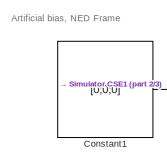
[diagram: root canvas - part 1/3, top left region]
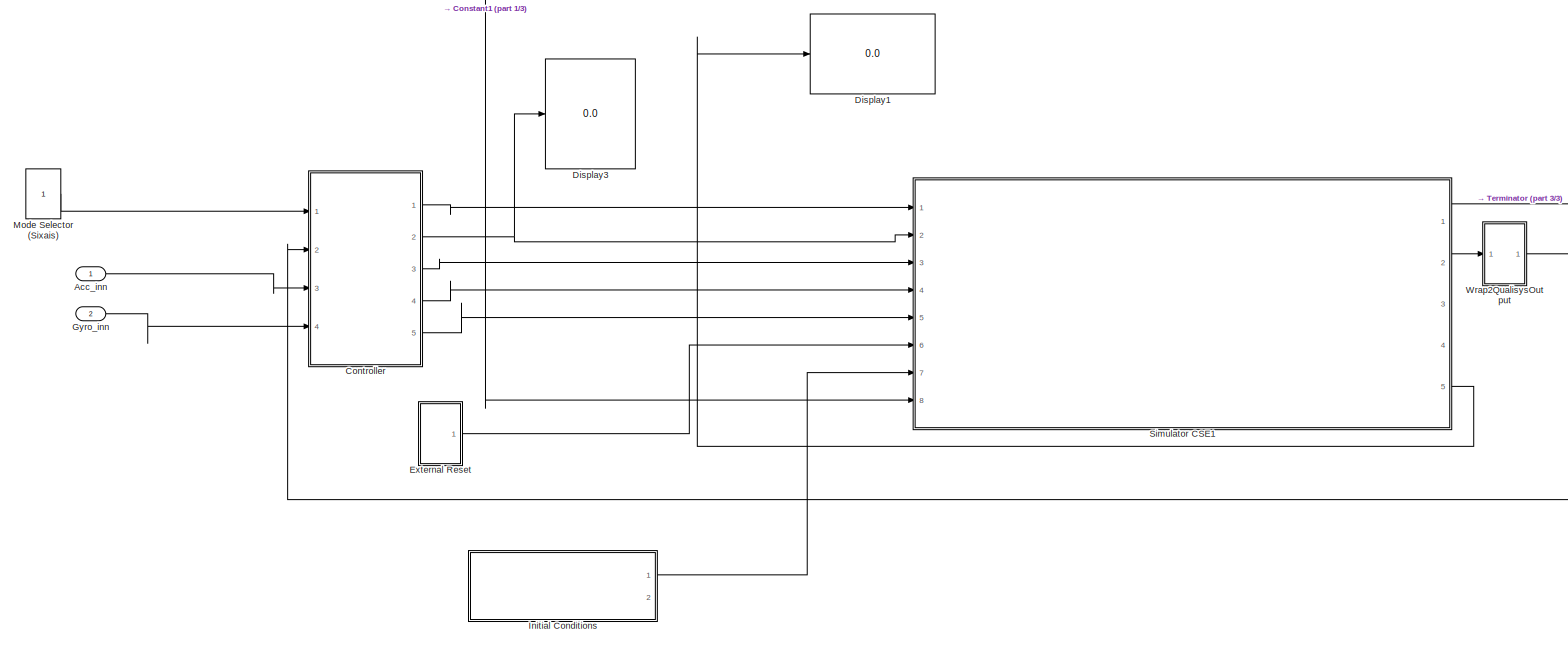
[diagram: root canvas - part 2/3, full width, bottom band]
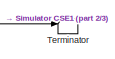
[diagram: root canvas - part 3/3, middle right region]
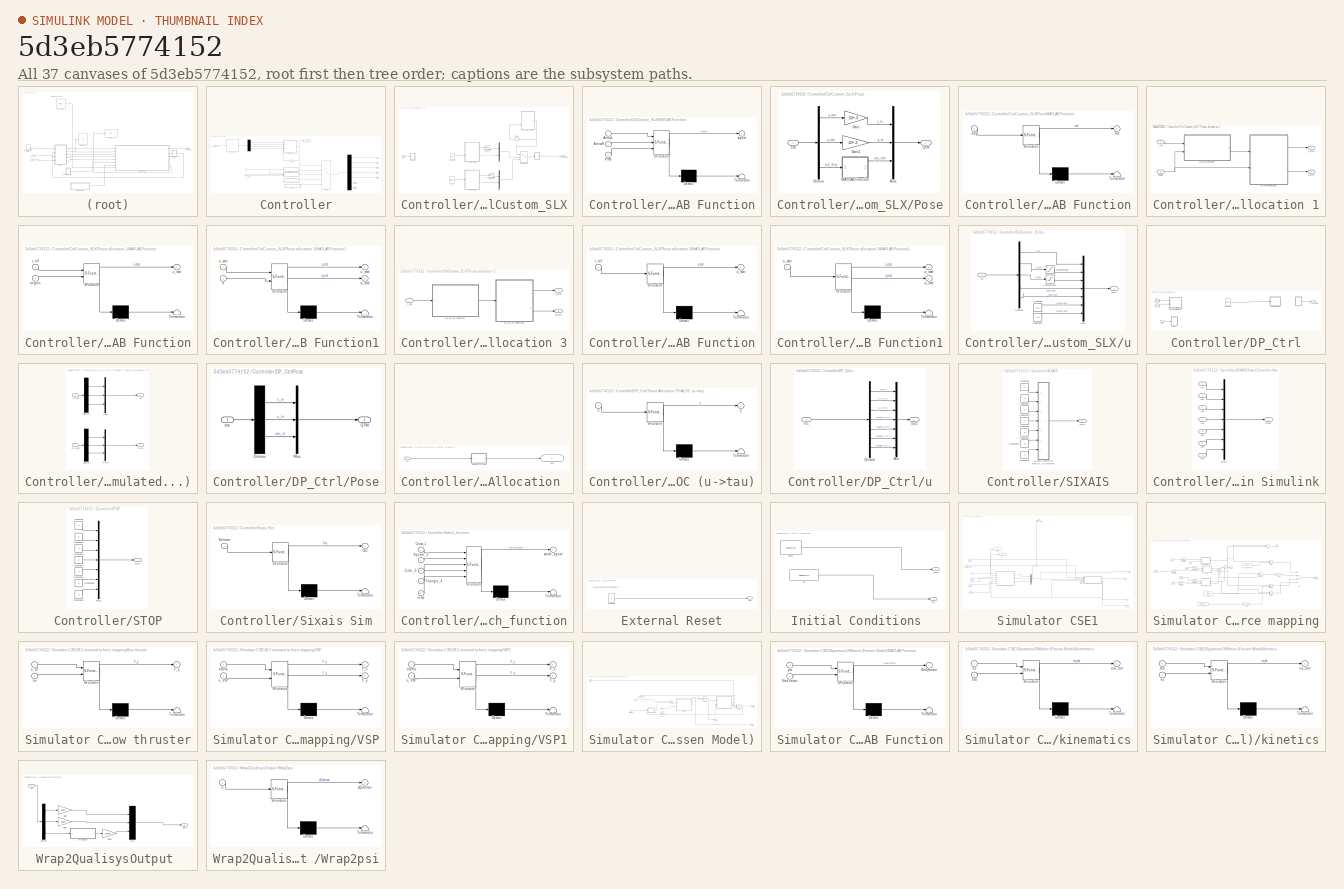
[diagram: thumbnail index - all 37 canvases of the model, root first then tree order]
MODEL slx_5d3eb5774152
KIND model
CONFIG AbsTol = auto
CONFIG EnableMultiTasking = off
CONFIG FixedStep = auto
CONFIG MaxStep = 10e-3
CONFIG MinStep = auto
CONFIG RelTol = 1e-3
CONFIG SampleTimeConstraint = Unconstrained
CONFIG Solver = VariableStepAuto
CONFIG SolverName = VariableStepAuto
CONFIG StartTime = 0.0
CONFIG StopTime = 20
BLOCK [Inport] Acc_inn
  IconDisplay = Port number
BLOCK [Constant] Constant1
  Value = [0;0;0]
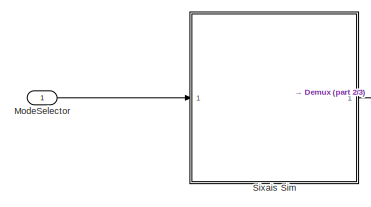
[diagram: Controller - part 1/3, top left region]
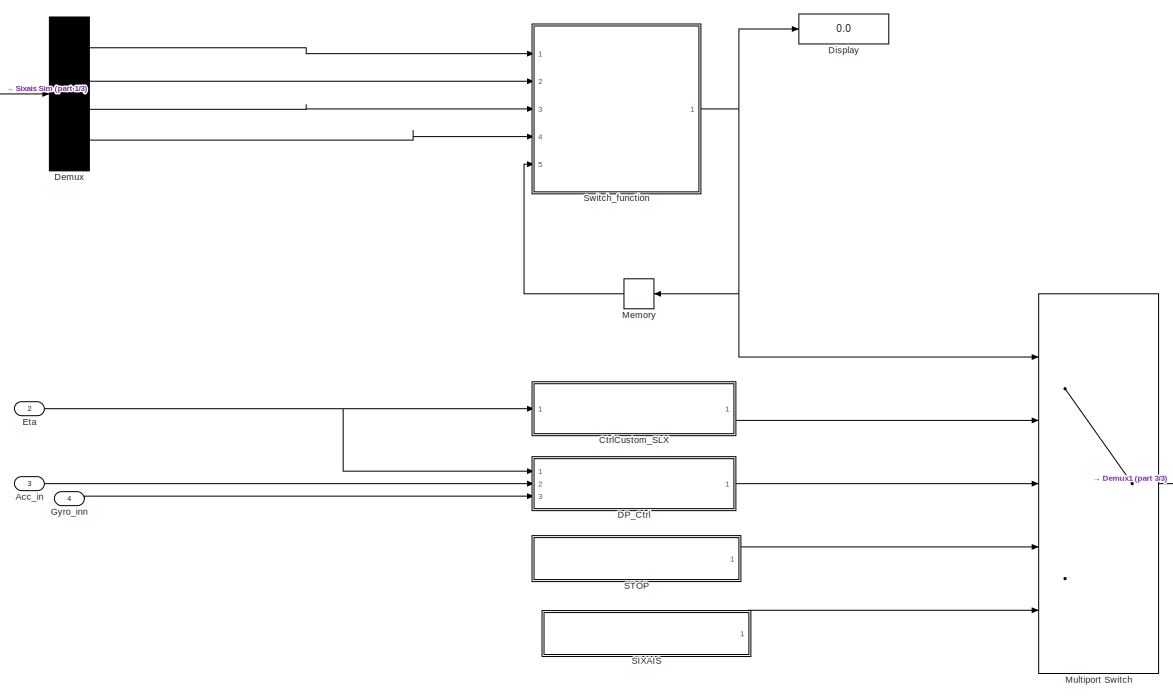
[diagram: Controller - part 2/3, center side, full height]
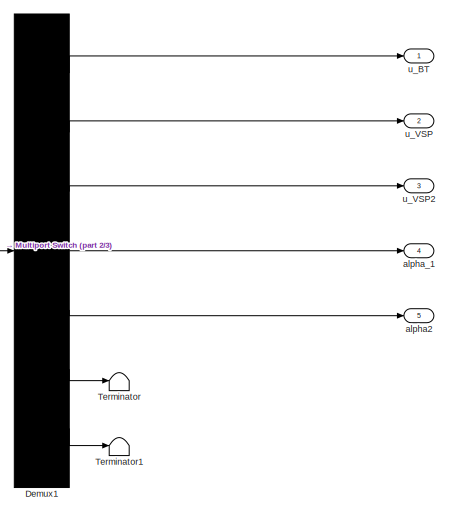
[diagram: Controller - part 3/3, middle right region]
BLOCK [SubSystem] Controller
  Ports = [4, 5]
  RequestExecContextInheritance = off
BLOCK [Inport] Controller/Acc_in
  IconDisplay = Port number
  Port = 3
BLOCK [SubSystem] Controller/CtrlCustom_SLX
  Ports = [1, 1]
  RequestExecContextInheritance = off
BLOCK [Constant] Controller/CtrlCustom_SLX/Constant
  Value = [0 0]'
  VectorParams1D = off
BLOCK [Inport] Controller/CtrlCustom_SLX/Eta
  IconDisplay = Port number
BLOCK [SubSystem] Controller/CtrlCustom_SLX/MATLAB Function
  ErrorFcn = Stateflow.Translate.translate
  PermitHierarchicalResolution = ExplicitOnly
  Ports = [3, 1]
  RequestExecContextInheritance = off
  SFBlockType = MATLAB Function
  TreatAsAtomicUnit = on
BLOCK [Demux] Controller/CtrlCustom_SLX/MATLAB Function/ Demux 
  Outputs = 1
  Ports = [1, 1]
BLOCK [S-Function] Controller/CtrlCustom_SLX/MATLAB Function/ SFunction 
  EnableBusSupport = off
  FunctionName = sf_sfun
  PortCounts = [3 2]
  Ports = [3, 2]
  SFcnIsStateOwnerBlock = off
  SFunctionDeploymentMode = off
  Tag = Stateflow S-Function CSE1_HIL_full_2016b 16
BLOCK [Terminator] Controller/CtrlCustom_SLX/MATLAB Function/ Terminator 
BLOCK [Inport] Controller/CtrlCustom_SLX/MATLAB Function/ArrowL
  IconDisplay = Port number
BLOCK [Inport] Controller/CtrlCustom_SLX/MATLAB Function/ArrowR
  IconDisplay = Port number
  Port = 2
BLOCK [Outport] Controller/CtrlCustom_SLX/MATLAB Function/signal
  IconDisplay = Port number
BLOCK [Inport] Controller/CtrlCustom_SLX/MATLAB Function/temp
  IconDisplay = Port number
  Port = 3
BLOCK [Memory] Controller/CtrlCustom_SLX/Memory
BLOCK [MultiPortSwitch] Controller/CtrlCustom_SLX/Multiport Switch
  InputSameDT = off
  Inputs = 2
  Ports = [3, 1]
  SaturateOnIntegerOverflow = off
BLOCK [Mux] Controller/CtrlCustom_SLX/Mux
  DisplayOption = bar
  Inputs = 2
  Ports = [2, 1]
BLOCK [Mux] Controller/CtrlCustom_SLX/Mux1
  DisplayOption = bar
  Inputs = 2
  Ports = [2, 1]
BLOCK [SubSystem] Controller/CtrlCustom_SLX/Pose
  Ports = [1, 1]
  RequestExecContextInheritance = off
BLOCK [Demux] Controller/CtrlCustom_SLX/Pose/Demux
  DisplayOption = bar
  Outputs = 3
  Ports = [1, 3]
BLOCK [Gain] Controller/CtrlCustom_SLX/Pose/Gain
  Gain = 10^-3
  OutDataTypeStr = Inherit: Inherit via internal rule
  ParamDataTypeStr = Inherit: Inherit via internal rule
  SaturateOnIntegerOverflow = off
BLOCK [Gain] Controller/CtrlCustom_SLX/Pose/Gain1
  Gain = 10^-3
  OutDataTypeStr = Inherit: Inherit via internal rule
  ParamDataTypeStr = Inherit: Inherit via internal rule
  SaturateOnIntegerOverflow = off
BLOCK [SubSystem] Controller/CtrlCustom_SLX/Pose/MATLAB Function
  ErrorFcn = Stateflow.Translate.translate
  PermitHierarchicalResolution = ExplicitOnly
  Ports = [1, 1]
  RequestExecContextInheritance = off
  SFBlockType = MATLAB Function
  TreatAsAtomicUnit = on
BLOCK [Demux] Controller/CtrlCustom_SLX/Pose/MATLAB Function/ Demux 
  Outputs = 1
  Ports = [1, 1]
BLOCK [S-Function] Controller/CtrlCustom_SLX/Pose/MATLAB Function/ SFunction 
  EnableBusSupport = on
  FunctionName = sf_sfun
  PortCounts = [1 2]
  Ports = [1, 2]
  SFcnIsStateOwnerBlock = off
  SFunctionDeploymentMode = off
  Tag = Stateflow S-Function CSE1_HIL_full_2016b 7
BLOCK [Terminator] Controller/CtrlCustom_SLX/Pose/MATLAB Function/ Terminator 
BLOCK [Inport] Controller/CtrlCustom_SLX/Pose/MATLAB Function/deg
  IconDisplay = Port number
BLOCK [Outport] Controller/CtrlCustom_SLX/Pose/MATLAB Function/rad
  IconDisplay = Port number
BLOCK [Mux] Controller/CtrlCustom_SLX/Pose/Mux
  DisplayOption = bar
  Inputs = 3
  Ports = [3, 1]
BLOCK [Outport] Controller/CtrlCustom_SLX/Pose/QTM
  IconDisplay = Port number
BLOCK [Inport] Controller/CtrlCustom_SLX/Pose/eta
  IconDisplay = Port number
BLOCK [Selector] Controller/CtrlCustom_SLX/Put bow thr in first place
  IndexOptions = Index vector (dialog)
  Indices = [3 1 2]
  InputPortWidth = 3
  OutputSizes = 1
  Ports = [1, 1]
BLOCK [Selector] Controller/CtrlCustom_SLX/Put bow thr in first place1
  IndexOptions = Index vector (dialog)
  Indices = [3 1 2]
  InputPortWidth = 3
  OutputSizes = 1
  Ports = [1, 1]
BLOCK [SubSystem] Controller/CtrlCustom_SLX/Thrust allocation 1
  Ports = [2, 2]
  RequestExecContextInheritance = off
BLOCK [SubSystem] Controller/CtrlCustom_SLX/Thrust allocation 1/MATLAB Function
  ErrorFcn = Stateflow.Translate.translate
  PermitHierarchicalResolution = ExplicitOnly
  Ports = [2, 1]
  RequestExecContextInheritance = off
  SFBlockType = MATLAB Function
  TreatAsAtomicUnit = on
BLOCK [Demux] Controller/CtrlCustom_SLX/Thrust allocation 1/MATLAB Function/ Demux 
  Outputs = 1
  Ports = [1, 1]
BLOCK [S-Function] Controller/CtrlCustom_SLX/Thrust allocation 1/MATLAB Function/ SFunction 
  EnableBusSupport = on
  FunctionName = sf_sfun
  PortCounts = [2 2]
  Ports = [2, 2]
  SFcnIsStateOwnerBlock = off
  SFunctionDeploymentMode = off
  Tag = Stateflow S-Function CSE1_HIL_full_2016b 6
BLOCK [Terminator] Controller/CtrlCustom_SLX/Thrust allocation 1/MATLAB Function/ Terminator 
BLOCK [Inport] Controller/CtrlCustom_SLX/Thrust allocation 1/MATLAB Function/angles
  IconDisplay = Port number
  Port = 2
BLOCK [Inport] Controller/CtrlCustom_SLX/Thrust allocation 1/MATLAB Function/t_ref
  IconDisplay = Port number
BLOCK [Outport] Controller/CtrlCustom_SLX/Thrust allocation 1/MATLAB Function/u_star
  IconDisplay = Port number
BLOCK [SubSystem] Controller/CtrlCustom_SLX/Thrust allocation 1/MATLAB Function1
  ErrorFcn = Stateflow.Translate.translate
  PermitHierarchicalResolution = ExplicitOnly
  Ports = [2, 2]
  RequestExecContextInheritance = off
  SFBlockType = MATLAB Function
  TreatAsAtomicUnit = on
BLOCK [Demux] Controller/CtrlCustom_SLX/Thrust allocation 1/MATLAB Function1/ Demux 
  Outputs = 1
  Ports = [1, 1]
BLOCK [S-Function] Controller/CtrlCustom_SLX/Thrust allocation 1/MATLAB Function1/ SFunction 
  EnableBusSupport = on
  FunctionName = sf_sfun
  PortCounts = [2 3]
  Ports = [2, 3]
  SFcnIsStateOwnerBlock = off
  SFunctionDeploymentMode = off
  Tag = Stateflow S-Function CSE1_HIL_full_2016b 15
BLOCK [Terminator] Controller/CtrlCustom_SLX/Thrust allocation 1/MATLAB Function1/ Terminator 
BLOCK [Inport] Controller/CtrlCustom_SLX/Thrust allocation 1/MATLAB Function1/a
  IconDisplay = Port number
  Port = 2
BLOCK [Outport] Controller/CtrlCustom_SLX/Thrust allocation 1/MATLAB Function1/a_cmd
  IconDisplay = Port number
  Port = 2
BLOCK [Outport] Controller/CtrlCustom_SLX/Thrust allocation 1/MATLAB Function1/u_cmd
  IconDisplay = Port number
BLOCK [Inport] Controller/CtrlCustom_SLX/Thrust allocation 1/MATLAB Function1/u_star
  IconDisplay = Port number
BLOCK [Outport] Controller/CtrlCustom_SLX/Thrust allocation 1/a_cmd
  IconDisplay = Port number
  Port = 2
BLOCK [Inport] Controller/CtrlCustom_SLX/Thrust allocation 1/angles
  IconDisplay = Port number
  Port = 2
BLOCK [Inport] Controller/CtrlCustom_SLX/Thrust allocation 1/t_ref
  IconDisplay = Port number
BLOCK [Outport] Controller/CtrlCustom_SLX/Thrust allocation 1/u_cmd
  IconDisplay = Port number
BLOCK [SubSystem] Controller/CtrlCustom_SLX/Thrust allocation 3
  Ports = [1, 2]
  RequestExecContextInheritance = off
BLOCK [SubSystem] Controller/CtrlCustom_SLX/Thrust allocation 3/MATLAB Function
  ErrorFcn = Stateflow.Translate.translate
  PermitHierarchicalResolution = ExplicitOnly
  Ports = [1, 1]
  RequestExecContextInheritance = off
  SFBlockType = MATLAB Function
  TreatAsAtomicUnit = on
BLOCK [Demux] Controller/CtrlCustom_SLX/Thrust allocation 3/MATLAB Function/ Demux 
  Outputs = 1
  Ports = [1, 1]
BLOCK [S-Function] Controller/CtrlCustom_SLX/Thrust allocation 3/MATLAB Function/ SFunction 
  EnableBusSupport = on
  FunctionName = sf_sfun
  PortCounts = [1 2]
  Ports = [1, 2]
  SFcnIsStateOwnerBlock = off
  SFunctionDeploymentMode = off
  Tag = Stateflow S-Function CSE1_HIL_full_2016b 5
BLOCK [Terminator] Controller/CtrlCustom_SLX/Thrust allocation 3/MATLAB Function/ Terminator 
BLOCK [Inport] Controller/CtrlCustom_SLX/Thrust allocation 3/MATLAB Function/t_ref
  IconDisplay = Port number
BLOCK [Outport] Controller/CtrlCustom_SLX/Thrust allocation 3/MATLAB Function/u_star
  IconDisplay = Port number
BLOCK [SubSystem] Controller/CtrlCustom_SLX/Thrust allocation 3/MATLAB Function1
  ErrorFcn = Stateflow.Translate.translate
  PermitHierarchicalResolution = ExplicitOnly
  Ports = [1, 2]
  RequestExecContextInheritance = off
  SFBlockType = MATLAB Function
  TreatAsAtomicUnit = on
BLOCK [Demux] Controller/CtrlCustom_SLX/Thrust allocation 3/MATLAB Function1/ Demux 
  Outputs = 1
  Ports = [1, 1]
BLOCK [S-Function] Controller/CtrlCustom_SLX/Thrust allocation 3/MATLAB Function1/ SFunction 
  EnableBusSupport = on
  FunctionName = sf_sfun
  PortCounts = [1 3]
  Ports = [1, 3]
  SFcnIsStateOwnerBlock = off
  SFunctionDeploymentMode = off
  Tag = Stateflow S-Function CSE1_HIL_full_2016b 11
BLOCK [Terminator] Controller/CtrlCustom_SLX/Thrust allocation 3/MATLAB Function1/ Terminator 
BLOCK [Outport] Controller/CtrlCustom_SLX/Thrust allocation 3/MATLAB Function1/a_cmd
  IconDisplay = Port number
  Port = 2
BLOCK [Outport] Controller/CtrlCustom_SLX/Thrust allocation 3/MATLAB Function1/u_cmd
  IconDisplay = Port number
BLOCK [Inport] Controller/CtrlCustom_SLX/Thrust allocation 3/MATLAB Function1/u_star
  IconDisplay = Port number
BLOCK [Outport] Controller/CtrlCustom_SLX/Thrust allocation 3/a_cmd
  IconDisplay = Port number
  Port = 2
BLOCK [Inport] Controller/CtrlCustom_SLX/Thrust allocation 3/t_ref
  IconDisplay = Port number
BLOCK [Outport] Controller/CtrlCustom_SLX/Thrust allocation 3/u_cmd
  IconDisplay = Port number
BLOCK [Constant] Controller/CtrlCustom_SLX/t_ref
  Value = [1, 0, 0]'
  VectorParams1D = off
BLOCK [SubSystem] Controller/CtrlCustom_SLX/u
  Ports = [1, 1]
  RequestExecContextInheritance = off
BLOCK [Constant] Controller/CtrlCustom_SLX/u/Constant
  Value = 0.3
BLOCK [Constant] Controller/CtrlCustom_SLX/u/Constant1
  Value = 0.3
BLOCK [Demux] Controller/CtrlCustom_SLX/u/Demux1
  DisplayOption = bar
  Outputs = 5
  Ports = [1, 5]
BLOCK [Inport] Controller/CtrlCustom_SLX/u/In1
  IconDisplay = Port number
BLOCK [Mux] Controller/CtrlCustom_SLX/u/Mux
  DisplayOption = bar
  Inputs = 7
  Ports = [7, 1]
BLOCK [Outport] Controller/CtrlCustom_SLX/u/Out1
  IconDisplay = Port number
BLOCK [Saturate] Controller/CtrlCustom_SLX/u/Saturation1
  InputPortMap = u0
  LowerLimit = 0
  Ports = [1, 1]
  UpperLimit = 1
BLOCK [Saturate] Controller/CtrlCustom_SLX/u/Saturation11
  InputPortMap = u0
  LowerLimit = 0
  Ports = [1, 1]
  UpperLimit = 1
BLOCK [Outport] Controller/CtrlCustom_SLX/u_customCtrl
  IconDisplay = Port number
BLOCK [SubSystem] Controller/DP_Ctrl
  Ports = [3, 1]
  RequestExecContextInheritance = off
BLOCK [Inport] Controller/DP_Ctrl/Acc_inn
  IconDisplay = Port number
  Port = 2
BLOCK [Constant] Controller/DP_Ctrl/Constant
  Value = [1;0;0]
BLOCK [Inport] Controller/DP_Ctrl/Eta
  IconDisplay = Port number
BLOCK [Inport] Controller/DP_Ctrl/Gyro_inn
  IconDisplay = Port number
  Port = 3
BLOCK [SubSystem] Controller/DP_Ctrl/IMU (Consider if going to be properly Simulated...)
  Ports = [2, 2]
  RequestExecContextInheritance = off
BLOCK [Outport] Controller/DP_Ctrl/IMU (Consider if going to be properly Simulated...)/Acc
  IconDisplay = Port number
BLOCK [Inport] Controller/DP_Ctrl/IMU (Consider if going to be properly Simulated...)/Acc_inn
  IconDisplay = Port number
  Port = 2
BLOCK [Demux] Controller/DP_Ctrl/IMU (Consider if going to be properly Simulated...)/Demux
  DisplayOption = bar
  Outputs = 3
  Ports = [1, 3]
BLOCK [Demux] Controller/DP_Ctrl/IMU (Consider if going to be properly Simulated...)/Demux1
  DisplayOption = bar
  Outputs = 3
  Ports = [1, 3]
BLOCK [Outport] Controller/DP_Ctrl/IMU (Consider if going to be properly Simulated...)/Gyro
  IconDisplay = Port number
  Port = 2
BLOCK [Inport] Controller/DP_Ctrl/IMU (Consider if going to be properly Simulated...)/Gyro_inn
  IconDisplay = Port number
BLOCK [Mux] Controller/DP_Ctrl/IMU (Consider if going to be properly Simulated...)/Mux
  DisplayOption = bar
  Inputs = 3
  Ports = [3, 1]
BLOCK [Mux] Controller/DP_Ctrl/IMU (Consider if going to be properly Simulated...)/Mux2
  DisplayOption = bar
  Inputs = 3
  Ports = [3, 1]
BLOCK [SubSystem] Controller/DP_Ctrl/Pose
  Ports = [1, 1]
  RequestExecContextInheritance = off
BLOCK [Demux] Controller/DP_Ctrl/Pose/Demux
  DisplayOption = bar
  Outputs = 3
  Ports = [1, 3]
BLOCK [Mux] Controller/DP_Ctrl/Pose/Mux
  DisplayOption = bar
  Inputs = 3
  Ports = [3, 1]
BLOCK [Outport] Controller/DP_Ctrl/Pose/QTM
  IconDisplay = Port number
BLOCK [Inport] Controller/DP_Ctrl/Pose/eta
  IconDisplay = Port number
BLOCK [SubSystem] Controller/DP_Ctrl/Thrust Allocation 
  Ports = [1, 1]
  RequestExecContextInheritance = off
BLOCK [Inport] Controller/DP_Ctrl/Thrust Allocation /In1
  IconDisplay = Port number
BLOCK [Outport] Controller/DP_Ctrl/Thrust Allocation /Out1
  IconDisplay = Port number
BLOCK [SubSystem] Controller/DP_Ctrl/Thrust Allocation /THALOC (u->tau)
  ErrorFcn = Stateflow.Translate.translate
  PermitHierarchicalResolution = ExplicitOnly
  Ports = [1, 1]
  RequestExecContextInheritance = off
  SFBlockType = MATLAB Function
  TreatAsAtomicUnit = on
BLOCK [Demux] Controller/DP_Ctrl/Thrust Allocation /THALOC (u->tau)/ Demux 
  Outputs = 1
  Ports = [1, 1]
BLOCK [S-Function] Controller/DP_Ctrl/Thrust Allocation /THALOC (u->tau)/ SFunction 
  EnableBusSupport = on
  FunctionName = sf_sfun
  PortCounts = [1 2]
  Ports = [1, 2]
  SFcnIsStateOwnerBlock = off
  SFunctionDeploymentMode = off
  Tag = Stateflow S-Function CSE1_HIL_full_2016b 10
BLOCK [Terminator] Controller/DP_Ctrl/Thrust Allocation /THALOC (u->tau)/ Terminator 
BLOCK [Inport] Controller/DP_Ctrl/Thrust Allocation /THALOC (u->tau)/u
  IconDisplay = Port number
BLOCK [Outport] Controller/DP_Ctrl/Thrust Allocation /THALOC (u->tau)/y
  IconDisplay = Port number
BLOCK [SubSystem] Controller/DP_Ctrl/u
  Ports = [1, 1]
  RequestExecContextInheritance = off
BLOCK [Demux] Controller/DP_Ctrl/u/Demux1
  DisplayOption = bar
  Outputs = 7
  Ports = [1, 7]
BLOCK [Inport] Controller/DP_Ctrl/u/In1
  IconDisplay = Port number
BLOCK [Mux] Controller/DP_Ctrl/u/Mux
  DisplayOption = bar
  Inputs = 7
  Ports = [7, 1]
BLOCK [Outport] Controller/DP_Ctrl/u/Out1
  IconDisplay = Port number
BLOCK [Outport] Controller/DP_Ctrl/u_customCtrl
  IconDisplay = Port number
BLOCK [Demux] Controller/Demux
  DisplayOption = bar
  Ports = [1, 4]
BLOCK [Demux] Controller/Demux1
  DisplayOption = bar
  Outputs = 7
  Ports = [1, 7]
BLOCK [Display] Controller/Display
  Decimation = 1
  Ports = [1]
BLOCK [Inport] Controller/Eta
  IconDisplay = Port number
  Port = 2
BLOCK [Inport] Controller/Gyro_inn
  IconDisplay = Port number
  Port = 4
BLOCK [Memory] Controller/Memory
  X0 = 4
BLOCK [Inport] Controller/ModeSelector
  IconDisplay = Port number
BLOCK [MultiPortSwitch] Controller/Multiport Switch
  InputSameDT = off
  Inputs = 4
  Ports = [5, 1]
  SaturateOnIntegerOverflow = off
BLOCK [SubSystem] Controller/SIXAIS
  Ports = [0, 1]
  RequestExecContextInheritance = off
BLOCK [Constant] Controller/SIXAIS/Constant
  Value = 0
BLOCK [Constant] Controller/SIXAIS/Constant1
  Value = 0
BLOCK [Constant] Controller/SIXAIS/Constant2
  Value = 0
BLOCK [Constant] Controller/SIXAIS/Constant3
  Value = 0
BLOCK [Constant] Controller/SIXAIS/Constant4
  Value = 0
BLOCK [Constant] Controller/SIXAIS/Constant5
  Value = 0
BLOCK [Constant] Controller/SIXAIS/Constant6
  Value = 0
BLOCK [Outport] Controller/SIXAIS/Out1
  IconDisplay = Port number
BLOCK [SubSystem] Controller/SIXAIS/Sixais Controller Not Simulated in Simulink
  Ports = [7, 1]
  RequestExecContextInheritance = off
BLOCK [Inport] Controller/SIXAIS/Sixais Controller Not Simulated in Simulink/In1
  IconDisplay = Port number
BLOCK [Inport] Controller/SIXAIS/Sixais Controller Not Simulated in Simulink/In2
  IconDisplay = Port number
  Port = 2
BLOCK [Inport] Controller/SIXAIS/Sixais Controller Not Simulated in Simulink/In3
  IconDisplay = Port number
  Port = 3
BLOCK [Inport] Controller/SIXAIS/Sixais Controller Not Simulated in Simulink/In4
  IconDisplay = Port number
  Port = 4
BLOCK [Inport] Controller/SIXAIS/Sixais Controller Not Simulated in Simulink/In5
  IconDisplay = Port number
  Port = 5
BLOCK [Inport] Controller/SIXAIS/Sixais Controller Not Simulated in Simulink/In6
  IconDisplay = Port number
  Port = 6
BLOCK [Inport] Controller/SIXAIS/Sixais Controller Not Simulated in Simulink/In7
  IconDisplay = Port number
  Port = 7
BLOCK [Mux] Controller/SIXAIS/Sixais Controller Not Simulated in Simulink/Mux1
  DisplayOption = bar
  Inputs = 7
  Ports = [7, 1]
BLOCK [Outport] Controller/SIXAIS/Sixais Controller Not Simulated in Simulink/Out1
  IconDisplay = Port number
BLOCK [SubSystem] Controller/STOP
  Ports = [0, 1]
  RequestExecContextInheritance = off
BLOCK [Constant] Controller/STOP/Constant
  Value = 0
BLOCK [Constant] Controller/STOP/Constant1
  Value = 0
BLOCK [Constant] Controller/STOP/Constant2
  Value = 0
BLOCK [Constant] Controller/STOP/Constant3
  Value = 0
BLOCK [Constant] Controller/STOP/Constant4
  Value = 0
BLOCK [Constant] Controller/STOP/Constant5
  Value = 0
BLOCK [Constant] Controller/STOP/Constant6
  Value = 0
BLOCK [Mux] Controller/STOP/Mux1
  DisplayOption = bar
  Inputs = 7
  Ports = [7, 1]
BLOCK [Outport] Controller/STOP/Out1
  IconDisplay = Port number
BLOCK [SubSystem] Controller/Sixais Sim
  ErrorFcn = Stateflow.Translate.translate
  PermitHierarchicalResolution = ExplicitOnly
  Ports = [1, 1]
  RequestExecContextInheritance = off
  SFBlockType = MATLAB Function
  TreatAsAtomicUnit = on
BLOCK [Demux] Controller/Sixais Sim/ Demux 
  Outputs = 1
  Ports = [1, 1]
BLOCK [S-Function] Controller/Sixais Sim/ SFunction 
  EnableBusSupport = on
  FunctionName = sf_sfun
  PortCounts = [1 2]
  Ports = [1, 2]
  SFcnIsStateOwnerBlock = off
  SFunctionDeploymentMode = off
  Tag = Stateflow S-Function CSE1_HIL_full_2016b 9
BLOCK [Terminator] Controller/Sixais Sim/ Terminator 
BLOCK [Outport] Controller/Sixais Sim/Out
  IconDisplay = Port number
BLOCK [Inport] Controller/Sixais Sim/Selector
  IconDisplay = Port number
BLOCK [SubSystem] Controller/Switch_function
  ErrorFcn = Stateflow.Translate.translate
  PermitHierarchicalResolution = ExplicitOnly
  Ports = [5, 1]
  RequestExecContextInheritance = off
  SFBlockType = MATLAB Function
  TreatAsAtomicUnit = on
BLOCK [Demux] Controller/Switch_function/ Demux 
  Outputs = 1
  Ports = [1, 1]
BLOCK [S-Function] Controller/Switch_function/ SFunction 
  EnableBusSupport = on
  FunctionName = sf_sfun
  PortCounts = [5 2]
  Ports = [5, 2]
  SFcnIsStateOwnerBlock = off
  SFunctionDeploymentMode = off
  Tag = Stateflow S-Function CSE1_HIL_full_2016b 8
BLOCK [Terminator] Controller/Switch_function/ Terminator 
BLOCK [Inport] Controller/Switch_function/Circle_3
  IconDisplay = Port number
  Port = 3
BLOCK [Inport] Controller/Switch_function/Cross_1
  IconDisplay = Port number
BLOCK [Inport] Controller/Switch_function/Square_2
  IconDisplay = Port number
  Port = 2
BLOCK [Inport] Controller/Switch_function/Triangle_4
  IconDisplay = Port number
  Port = 4
BLOCK [Outport] Controller/Switch_function/switch_signal
  IconDisplay = Port number
BLOCK [Inport] Controller/Switch_function/temp
  IconDisplay = Port number
  Port = 5
BLOCK [Terminator] Controller/Terminator
BLOCK [Terminator] Controller/Terminator1
BLOCK [Outport] Controller/alpha2
  IconDisplay = Port number
  Port = 5
BLOCK [Outport] Controller/alpha_1
  IconDisplay = Port number
  Port = 4
BLOCK [Outport] Controller/u_BT
  IconDisplay = Port number
BLOCK [Outport] Controller/u_VSP
  IconDisplay = Port number
  Port = 2
BLOCK [Outport] Controller/u_VSP2 
  IconDisplay = Port number
  Port = 3
BLOCK [Display] Display1
  Decimation = 1
  Ports = [1]
BLOCK [Display] Display3
  Decimation = 1
  Ports = [1]
BLOCK [SubSystem] External Reset
  Ports = [0, 1]
  RequestExecContextInheritance = off
BLOCK [Constant] External Reset/Constant
  Value = 0
BLOCK [Outport] External Reset/Out1
  IconDisplay = Port number
BLOCK [Inport] Gyro_inn
  IconDisplay = Port number
  Port = 2
BLOCK [SubSystem] Initial Conditions 
  Ports = [0, 2]
  RequestExecContextInheritance = off
BLOCK [Constant] Initial Conditions /Eta0
  Value = zeros(3,1)
BLOCK [Constant] Initial Conditions /V0 
  Value = zeros(3,1)
BLOCK [Outport] Initial Conditions /eta0
  IconDisplay = Port number
BLOCK [Outport] Initial Conditions /nu0
  IconDisplay = Port number
  Port = 2
BLOCK [Constant] Mode Selector (Sixais)
BLOCK [SubSystem] Simulator CSE1
  Ports = [8, 5]
  RequestExecContextInheritance = off
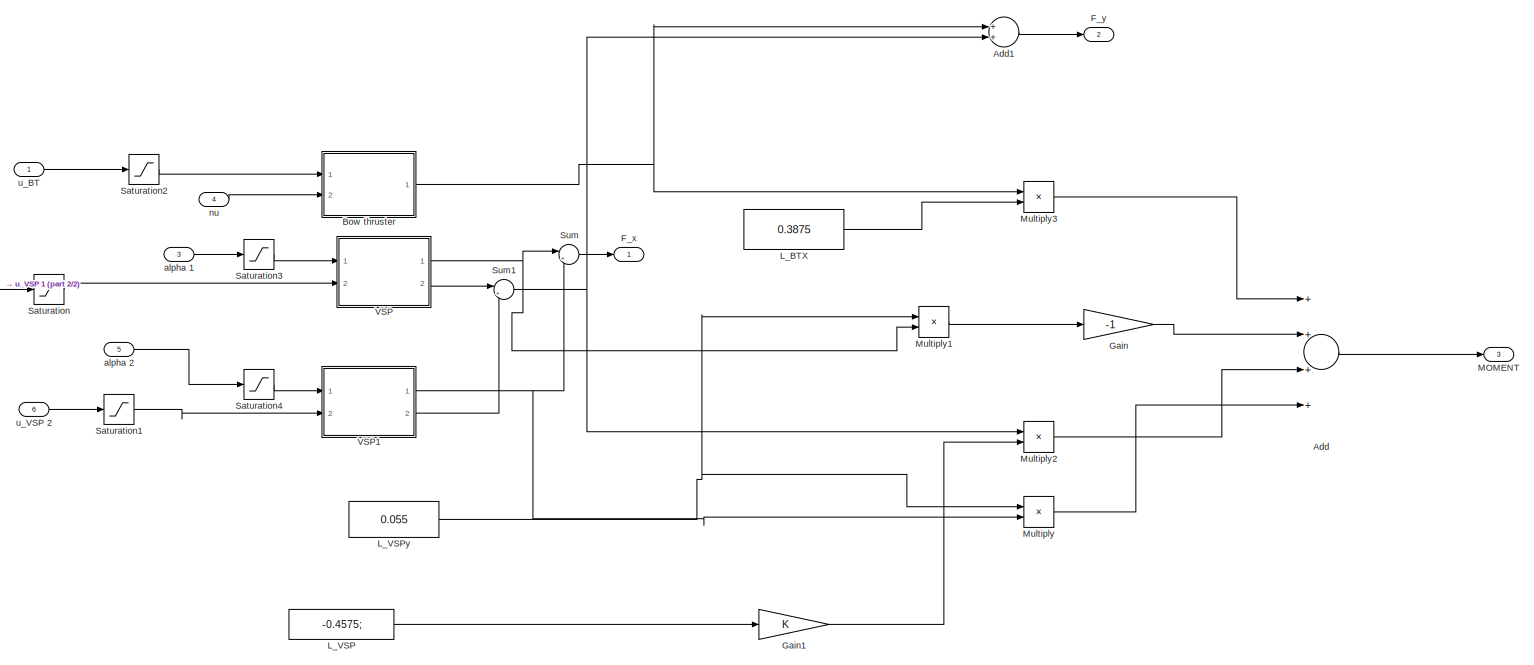
[diagram: Simulator CSE1/B Command to force mapping - part 1/2, most of the canvas]
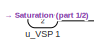
[diagram: Simulator CSE1/B Command to force mapping - part 2/2, middle left region]
BLOCK [SubSystem] Simulator CSE1/B Command to force mapping
  Ports = [6, 3]
  RequestExecContextInheritance = off
BLOCK [Sum] Simulator CSE1/B Command to force mapping/Add
  InputSameDT = off
  Inputs = ++++
  OutDataTypeStr = Inherit: Inherit via internal rule
  Ports = [4, 1]
  SaturateOnIntegerOverflow = off
BLOCK [Sum] Simulator CSE1/B Command to force mapping/Add1
  InputSameDT = off
  OutDataTypeStr = Inherit: Inherit via internal rule
  Ports = [2, 1]
  SaturateOnIntegerOverflow = off
BLOCK [SubSystem] Simulator CSE1/B Command to force mapping/Bow thruster
  ErrorFcn = Stateflow.Translate.translate
  PermitHierarchicalResolution = ExplicitOnly
  Ports = [2, 1]
  RequestExecContextInheritance = off
  SFBlockType = MATLAB Function
  TreatAsAtomicUnit = on
BLOCK [Demux] Simulator CSE1/B Command to force mapping/Bow thruster/ Demux 
  Outputs = 1
  Ports = [1, 1]
BLOCK [S-Function] Simulator CSE1/B Command to force mapping/Bow thruster/ SFunction 
  EnableBusSupport = on
  FunctionName = sf_sfun
  PortCounts = [2 2]
  Ports = [2, 2]
  SFcnIsStateOwnerBlock = off
  SFunctionDeploymentMode = off
  Tag = Stateflow S-Function CSE1_HIL_full_2016b 12
BLOCK [Terminator] Simulator CSE1/B Command to force mapping/Bow thruster/ Terminator 
BLOCK [Outport] Simulator CSE1/B Command to force mapping/Bow thruster/F_y
  IconDisplay = Port number
BLOCK [Inport] Simulator CSE1/B Command to force mapping/Bow thruster/nu
  IconDisplay = Port number
  Port = 2
BLOCK [Inport] Simulator CSE1/B Command to force mapping/Bow thruster/u_BT
  IconDisplay = Port number
BLOCK [Outport] Simulator CSE1/B Command to force mapping/F_x
  IconDisplay = Port number
BLOCK [Outport] Simulator CSE1/B Command to force mapping/F_y 
  IconDisplay = Port number
  Port = 2
BLOCK [Gain] Simulator CSE1/B Command to force mapping/Gain
  Gain = -1
  OutDataTypeStr = Inherit: Inherit via internal rule
  ParamDataTypeStr = Inherit: Inherit via internal rule
  SaturateOnIntegerOverflow = off
BLOCK [Gain] Simulator CSE1/B Command to force mapping/Gain1
  OutDataTypeStr = Inherit: Inherit via internal rule
  ParamDataTypeStr = Inherit: Inherit via internal rule
  SaturateOnIntegerOverflow = off
BLOCK [Constant] Simulator CSE1/B Command to force mapping/L_BTX
  Value = 0.3875
BLOCK [Constant] Simulator CSE1/B Command to force mapping/L_VSP
  Value = -0.4575;
BLOCK [Constant] Simulator CSE1/B Command to force mapping/L_VSPy
  Value = 0.055
BLOCK [Outport] Simulator CSE1/B Command to force mapping/MOMENT 
  IconDisplay = Port number
  Port = 3
BLOCK [Product] Simulator CSE1/B Command to force mapping/Multiply
  InputSameDT = off
  OutDataTypeStr = Inherit: Inherit via internal rule
  Ports = [2, 1]
  RndMeth = Floor
  SaturateOnIntegerOverflow = off
BLOCK [Product] Simulator CSE1/B Command to force mapping/Multiply1
  InputSameDT = off
  OutDataTypeStr = Inherit: Inherit via internal rule
  Ports = [2, 1]
  RndMeth = Floor
  SaturateOnIntegerOverflow = off
BLOCK [Product] Simulator CSE1/B Command to force mapping/Multiply2
  InputSameDT = off
  OutDataTypeStr = Inherit: Inherit via internal rule
  Ports = [2, 1]
  RndMeth = Floor
  SaturateOnIntegerOverflow = off
BLOCK [Product] Simulator CSE1/B Command to force mapping/Multiply3
  InputSameDT = off
  OutDataTypeStr = Inherit: Inherit via internal rule
  Ports = [2, 1]
  RndMeth = Floor
  SaturateOnIntegerOverflow = off
BLOCK [Saturate] Simulator CSE1/B Command to force mapping/Saturation
  InputPortMap = u0
  LowerLimit = 0
  Ports = [1, 1]
  UpperLimit = 1
BLOCK [Saturate] Simulator CSE1/B Command to force mapping/Saturation1
  InputPortMap = u0
  LowerLimit = 0
  Ports = [1, 1]
  UpperLimit = 1
BLOCK [Saturate] Simulator CSE1/B Command to force mapping/Saturation2
  InputPortMap = u0
  LowerLimit = -1
  Ports = [1, 1]
  UpperLimit = 1
BLOCK [Saturate] Simulator CSE1/B Command to force mapping/Saturation3
  InputPortMap = u0
  LowerLimit = -pi
  Ports = [1, 1]
  UpperLimit = pi
BLOCK [Saturate] Simulator CSE1/B Command to force mapping/Saturation4
  InputPortMap = u0
  LowerLimit = -pi
  Ports = [1, 1]
  UpperLimit = pi
BLOCK [Sum] Simulator CSE1/B Command to force mapping/Sum
  IconShape = round
  InputSameDT = off
  Inputs = |++
  OutDataTypeStr = Inherit: Inherit via internal rule
  Ports = [2, 1]
  SaturateOnIntegerOverflow = off
BLOCK [Sum] Simulator CSE1/B Command to force mapping/Sum1
  IconShape = round
  InputSameDT = off
  Inputs = |++
  OutDataTypeStr = Inherit: Inherit via internal rule
  Ports = [2, 1]
  SaturateOnIntegerOverflow = off
BLOCK [SubSystem] Simulator CSE1/B Command to force mapping/VSP
  ErrorFcn = Stateflow.Translate.translate
  PermitHierarchicalResolution = ExplicitOnly
  Ports = [2, 2]
  RequestExecContextInheritance = off
  SFBlockType = MATLAB Function
  TreatAsAtomicUnit = on
BLOCK [Demux] Simulator CSE1/B Command to force mapping/VSP/ Demux 
  Outputs = 1
  Ports = [1, 1]
BLOCK [S-Function] Simulator CSE1/B Command to force mapping/VSP/ SFunction 
  EnableBusSupport = on
  FunctionName = sf_sfun
  PortCounts = [2 3]
  Ports = [2, 3]
  SFcnIsStateOwnerBlock = off
  SFunctionDeploymentMode = off
  Tag = Stateflow S-Function CSE1_HIL_full_2016b 13
BLOCK [Terminator] Simulator CSE1/B Command to force mapping/VSP/ Terminator 
BLOCK [Outport] Simulator CSE1/B Command to force mapping/VSP/F_x
  IconDisplay = Port number
BLOCK [Outport] Simulator CSE1/B Command to force mapping/VSP/F_y
  IconDisplay = Port number
  Port = 2
BLOCK [Inport] Simulator CSE1/B Command to force mapping/VSP/alpha
  IconDisplay = Port number
BLOCK [Inport] Simulator CSE1/B Command to force mapping/VSP/u_VSP
  IconDisplay = Port number
  Port = 2
BLOCK [SubSystem] Simulator CSE1/B Command to force mapping/VSP1
  ErrorFcn = Stateflow.Translate.translate
  PermitHierarchicalResolution = ExplicitOnly
  Ports = [2, 2]
  RequestExecContextInheritance = off
  SFBlockType = MATLAB Function
  TreatAsAtomicUnit = on
BLOCK [Demux] Simulator CSE1/B Command to force mapping/VSP1/ Demux 
  Outputs = 1
  Ports = [1, 1]
BLOCK [S-Function] Simulator CSE1/B Command to force mapping/VSP1/ SFunction 
  EnableBusSupport = on
  FunctionName = sf_sfun
  PortCounts = [2 3]
  Ports = [2, 3]
  SFcnIsStateOwnerBlock = off
  SFunctionDeploymentMode = off
  Tag = Stateflow S-Function CSE1_HIL_full_2016b 14
BLOCK [Terminator] Simulator CSE1/B Command to force mapping/VSP1/ Terminator 
BLOCK [Outport] Simulator CSE1/B Command to force mapping/VSP1/F_x
  IconDisplay = Port number
BLOCK [Outport] Simulator CSE1/B Command to force mapping/VSP1/F_y
  IconDisplay = Port number
  Port = 2
BLOCK [Inport] Simulator CSE1/B Command to force mapping/VSP1/alpha
  IconDisplay = Port number
BLOCK [Inport] Simulator CSE1/B Command to force mapping/VSP1/u_VSP
  IconDisplay = Port number
  Port = 2
BLOCK [Inport] Simulator CSE1/B Command to force mapping/alpha 1
  IconDisplay = Port number
  Port = 3
BLOCK [Inport] Simulator CSE1/B Command to force mapping/alpha 2
  IconDisplay = Port number
  Port = 5
BLOCK [Inport] Simulator CSE1/B Command to force mapping/nu
  IconDisplay = Port number
  Port = 4
BLOCK [Inport] Simulator CSE1/B Command to force mapping/u_BT
  IconDisplay = Port number
BLOCK [Inport] Simulator CSE1/B Command to force mapping/u_VSP 1
  IconDisplay = Port number
  Port = 2
BLOCK [Inport] Simulator CSE1/B Command to force mapping/u_VSP 2
  IconDisplay = Port number
  Port = 6
BLOCK [Inport] Simulator CSE1/BIAS
  IconDisplay = Port number
  Port = 8
BLOCK [Display] Simulator CSE1/Display
  Decimation = 1
  Ports = [1]
BLOCK [Display] Simulator CSE1/Display1
  Decimation = 1
  Ports = [1]
BLOCK [SubSystem] Simulator CSE1/EquationsOfMotion (Fossen Model)
  Ports = [5, 3]
  RequestExecContextInheritance = off
BLOCK [Sum] Simulator CSE1/EquationsOfMotion (Fossen Model)/Add
  InputSameDT = off
  OutDataTypeStr = Inherit: Inherit via internal rule
  Ports = [2, 1]
  SaturateOnIntegerOverflow = off
BLOCK [Inport] Simulator CSE1/EquationsOfMotion (Fossen Model)/Aritifiicial BIas
  IconDisplay = Port number
  Port = 5
BLOCK [Outport] Simulator CSE1/EquationsOfMotion (Fossen Model)/EtaOut
  IconDisplay = Port number
BLOCK [Inport] Simulator CSE1/EquationsOfMotion (Fossen Model)/External Reset
  IconDisplay = Port number
  Port = 2
BLOCK [SubSystem] Simulator CSE1/EquationsOfMotion (Fossen Model)/MATLAB Function
  ErrorFcn = Stateflow.Translate.translate
  PermitHierarchicalResolution = ExplicitOnly
  Ports = [2, 1]
  RequestExecContextInheritance = off
  SFBlockType = MATLAB Function
  TreatAsAtomicUnit = on
BLOCK [Demux] Simulator CSE1/EquationsOfMotion (Fossen Model)/MATLAB Function/ Demux 
  Outputs = 1
  Ports = [1, 1]
BLOCK [S-Function] Simulator CSE1/EquationsOfMotion (Fossen Model)/MATLAB Function/ SFunction 
  EnableBusSupport = on
  FunctionName = sf_sfun
  PortCounts = [2 2]
  Ports = [2, 2]
  SFcnIsStateOwnerBlock = off
  SFunctionDeploymentMode = off
  Tag = Stateflow S-Function CSE1_HIL_full_2016b 3
BLOCK [Terminator] Simulator CSE1/EquationsOfMotion (Fossen Model)/MATLAB Function/ Terminator 
BLOCK [Outport] Simulator CSE1/EquationsOfMotion (Fossen Model)/MATLAB Function/BodyVector
  IconDisplay = Port number
BLOCK [Inport] Simulator CSE1/EquationsOfMotion (Fossen Model)/MATLAB Function/NedVector
  IconDisplay = Port number
  Port = 2
BLOCK [Inport] Simulator CSE1/EquationsOfMotion (Fossen Model)/MATLAB Function/psi
  IconDisplay = Port number
BLOCK [Integrator] Simulator CSE1/EquationsOfMotion (Fossen Model)/Position
  ExternalReset = either
  InitialCondition = [0 0 0]'
  InitialConditionSource = external
  Ports = [3, 1]
BLOCK [Selector] Simulator CSE1/EquationsOfMotion (Fossen Model)/Selector
  IndexOptions = Index vector (dialog)
  Indices = [3]
  InputPortWidth = 3
  OutputSizes = 1
  Ports = [1, 1]
BLOCK [Integrator] Simulator CSE1/EquationsOfMotion (Fossen Model)/Velocity
  ExternalReset = either
  InitialCondition = [0 0 0]'
  Ports = [2, 1]
BLOCK [Inport] Simulator CSE1/EquationsOfMotion (Fossen Model)/[eta0] 
  IconDisplay = Port number
BLOCK [SubSystem] Simulator CSE1/EquationsOfMotion (Fossen Model)/kinematics
  ErrorFcn = Stateflow.Translate.translate
  PermitHierarchicalResolution = ExplicitOnly
  Ports = [2, 1]
  RequestExecContextInheritance = off
  SFBlockType = MATLAB Function
  TreatAsAtomicUnit = on
BLOCK [Demux] Simulator CSE1/EquationsOfMotion (Fossen Model)/kinematics/ Demux 
  Outputs = 1
  Ports = [1, 1]
BLOCK [S-Function] Simulator CSE1/EquationsOfMotion (Fossen Model)/kinematics/ SFunction 
  EnableBusSupport = on
  FunctionName = sf_sfun
  PortCounts = [2 2]
  Ports = [2, 2]
  SFcnIsStateOwnerBlock = off
  SFunctionDeploymentMode = off
  Tag = Stateflow S-Function CSE1_HIL_full_2016b 1
BLOCK [Terminator] Simulator CSE1/EquationsOfMotion (Fossen Model)/kinematics/ Terminator 
BLOCK [Inport] Simulator CSE1/EquationsOfMotion (Fossen Model)/kinematics/eta
  IconDisplay = Port number
  Port = 2
BLOCK [Outport] Simulator CSE1/EquationsOfMotion (Fossen Model)/kinematics/eta_dot
  IconDisplay = Port number
BLOCK [Inport] Simulator CSE1/EquationsOfMotion (Fossen Model)/kinematics/nu
  IconDisplay = Port number
BLOCK [SubSystem] Simulator CSE1/EquationsOfMotion (Fossen Model)/kinetics
  ErrorFcn = Stateflow.Translate.translate
  PermitHierarchicalResolution = ExplicitOnly
  Ports = [2, 1]
  RequestExecContextInheritance = off
  SFBlockType = MATLAB Function
  TreatAsAtomicUnit = on
BLOCK [Demux] Simulator CSE1/EquationsOfMotion (Fossen Model)/kinetics/ Demux 
  Outputs = 1
  Ports = [1, 1]
BLOCK [S-Function] Simulator CSE1/EquationsOfMotion (Fossen Model)/kinetics/ SFunction 
  EnableBusSupport = on
  FunctionName = sf_sfun
  PortCounts = [2 2]
  Ports = [2, 2]
  SFcnIsStateOwnerBlock = off
  SFunctionDeploymentMode = off
  Tag = Stateflow S-Function CSE1_HIL_full_2016b 2
BLOCK [Terminator] Simulator CSE1/EquationsOfMotion (Fossen Model)/kinetics/ Terminator 
BLOCK [Inport] Simulator CSE1/EquationsOfMotion (Fossen Model)/kinetics/nu
  IconDisplay = Port number
  Port = 2
BLOCK [Outport] Simulator CSE1/EquationsOfMotion (Fossen Model)/kinetics/nu_dot
  IconDisplay = Port number
BLOCK [Inport] Simulator CSE1/EquationsOfMotion (Fossen Model)/kinetics/tau
  IconDisplay = Port number
BLOCK [Inport] Simulator CSE1/EquationsOfMotion (Fossen Model)/nuInn
  IconDisplay = Port number
  Port = 4
BLOCK [Outport] Simulator CSE1/EquationsOfMotion (Fossen Model)/nuOut
  IconDisplay = Port number
  Port = 2
BLOCK [Outport] Simulator CSE1/EquationsOfMotion (Fossen Model)/nudot
  IconDisplay = Port number
  Port = 3
BLOCK [Inport] Simulator CSE1/EquationsOfMotion (Fossen Model)/tau
  IconDisplay = Port number
  Port = 3
BLOCK [Inport] Simulator CSE1/Eta0
  IconDisplay = Port number
  Port = 7
BLOCK [Inport] Simulator CSE1/External Reset1
  IconDisplay = Port number
  Port = 6
BLOCK [Outport] Simulator CSE1/ForceApplied
  IconDisplay = Port number
  Port = 5
BLOCK [Mux] Simulator CSE1/Mux2
  DisplayOption = bar
  Inputs = 3
  Ports = [3, 1]
BLOCK [Inport] Simulator CSE1/alpha 1
  IconDisplay = Port number
  Port = 4
BLOCK [Inport] Simulator CSE1/alpha 2
  IconDisplay = Port number
  Port = 5
BLOCK [Outport] Simulator CSE1/eta
  IconDisplay = Port number
  Port = 2
BLOCK [Outport] Simulator CSE1/nu
  IconDisplay = Port number
  Port = 3
BLOCK [Outport] Simulator CSE1/nu_dot
  IconDisplay = Port number
  Port = 4
BLOCK [Outport] Simulator CSE1/tau
  IconDisplay = Port number
BLOCK [Inport] Simulator CSE1/u_BT
  IconDisplay = Port number
BLOCK [Inport] Simulator CSE1/u_VSP 1
  IconDisplay = Port number
  Port = 2
BLOCK [Inport] Simulator CSE1/u_VSP 2
  IconDisplay = Port number
  Port = 3
BLOCK [Terminator] Terminator
BLOCK [SubSystem] Wrap2QualisysOutput 
  Ports = [1, 1]
  RequestExecContextInheritance = off
BLOCK [Demux] Wrap2QualisysOutput /Demux
  DisplayOption = bar
  Outputs = 3
  Ports = [1, 3]
BLOCK [Gain] Wrap2QualisysOutput /Gain
  Gain = 1000
  OutDataTypeStr = Inherit: Inherit via internal rule
  ParamDataTypeStr = Inherit: Inherit via internal rule
  SaturateOnIntegerOverflow = off
BLOCK [Gain] Wrap2QualisysOutput /Gain1
  Gain = 1000
  OutDataTypeStr = Inherit: Inherit via internal rule
  ParamDataTypeStr = Inherit: Inherit via internal rule
  SaturateOnIntegerOverflow = off
BLOCK [Gain] Wrap2QualisysOutput /Gain2
  Gain = 180/pi
  OutDataTypeStr = Inherit: Inherit via internal rule
  ParamDataTypeStr = Inherit: Inherit via internal rule
  SaturateOnIntegerOverflow = off
BLOCK [Inport] Wrap2QualisysOutput /In1
  IconDisplay = Port number
BLOCK [Mux] Wrap2QualisysOutput /Mux
  DisplayOption = bar
  Inputs = 3
  Ports = [3, 1]
BLOCK [Outport] Wrap2QualisysOutput /Out1
  IconDisplay = Port number
BLOCK [SubSystem] Wrap2QualisysOutput /Wrap2psi
  ErrorFcn = Stateflow.Translate.translate
  PermitHierarchicalResolution = ExplicitOnly
  Ports = [1, 1]
  RequestExecContextInheritance = off
  SFBlockType = MATLAB Function
  TreatAsAtomicUnit = on
BLOCK [Demux] Wrap2QualisysOutput /Wrap2psi/ Demux 
  Outputs = 1
  Ports = [1, 1]
BLOCK [S-Function] Wrap2QualisysOutput /Wrap2psi/ SFunction 
  EnableBusSupport = on
  FunctionName = sf_sfun
  PortCounts = [1 2]
  Ports = [1, 2]
  SFcnIsStateOwnerBlock = off
  SFunctionDeploymentMode = off
  Tag = Stateflow S-Function CSE1_HIL_full_2016b 4
BLOCK [Terminator] Wrap2QualisysOutput /Wrap2psi/ Terminator 
BLOCK [Inport] Wrap2QualisysOutput /Wrap2psi/u
  IconDisplay = Port number
BLOCK [Outport] Wrap2QualisysOutput /Wrap2psi/yQualisus
  IconDisplay = Port number
ANNOTATION (root): Artificial bias, NED Frame
ANNOTATION External Reset: Most relevant for Real-Time Simulations...
LINE Acc_inn:1 -> Controller:3
LINE Constant1:1 -> Simulator CSE1:8
LINE Controller/Acc_in:1 -> Controller/DP_Ctrl:2
LINE Controller/CtrlCustom_SLX/Constant:1 -> Controller/CtrlCustom_SLX/Thrust allocation 1:2
LINE Controller/CtrlCustom_SLX/Eta:1 -> Controller/CtrlCustom_SLX/Pose:1
NET Controller/CtrlCustom_SLX/MATLAB Function:1 -> Controller/CtrlCustom_SLX/Memory:1, Controller/CtrlCustom_SLX/Multiport Switch:1
LINE Controller/CtrlCustom_SLX/Memory:1 -> Controller/CtrlCustom_SLX/MATLAB Function:3
LINE Controller/CtrlCustom_SLX/Multiport Switch:1 -> Controller/CtrlCustom_SLX/u:1
LINE Controller/CtrlCustom_SLX/Mux1:1 -> Controller/CtrlCustom_SLX/Multiport Switch:2
LINE Controller/CtrlCustom_SLX/Mux:1 -> Controller/CtrlCustom_SLX/Multiport Switch:3
LINE Controller/CtrlCustom_SLX/Pose/Demux:1 -> Controller/CtrlCustom_SLX/Pose/Gain:1
LINE Controller/CtrlCustom_SLX/Pose/Demux:2 -> Controller/CtrlCustom_SLX/Pose/Gain1:1
LINE Controller/CtrlCustom_SLX/Pose/Demux:3 -> Controller/CtrlCustom_SLX/Pose/MATLAB Function:1
LINE Controller/CtrlCustom_SLX/Pose/Gain1:1 -> Controller/CtrlCustom_SLX/Pose/Mux:2
LINE Controller/CtrlCustom_SLX/Pose/Gain:1 -> Controller/CtrlCustom_SLX/Pose/Mux:1
LINE Controller/CtrlCustom_SLX/Pose/MATLAB Function:1 -> Controller/CtrlCustom_SLX/Pose/Mux:3
LINE Controller/CtrlCustom_SLX/Pose/Mux:1 -> Controller/CtrlCustom_SLX/Pose/QTM:1
LINE Controller/CtrlCustom_SLX/Pose/eta:1 -> Controller/CtrlCustom_SLX/Pose/Demux:1
LINE Controller/CtrlCustom_SLX/Put bow thr in first place1:1 -> Controller/CtrlCustom_SLX/Mux1:1
LINE Controller/CtrlCustom_SLX/Put bow thr in first place:1 -> Controller/CtrlCustom_SLX/Mux:1
LINE Controller/CtrlCustom_SLX/Thrust allocation 1/MATLAB Function1:1 -> Controller/CtrlCustom_SLX/Thrust allocation 1/u_cmd:1
LINE Controller/CtrlCustom_SLX/Thrust allocation 1/MATLAB Function1:2 -> Controller/CtrlCustom_SLX/Thrust allocation 1/a_cmd:1
LINE Controller/CtrlCustom_SLX/Thrust allocation 1/MATLAB Function:1 -> Controller/CtrlCustom_SLX/Thrust allocation 1/MATLAB Function1:1
NET Controller/CtrlCustom_SLX/Thrust allocation 1/angles:1 -> Controller/CtrlCustom_SLX/Thrust allocation 1/MATLAB Function1:2, Controller/CtrlCustom_SLX/Thrust allocation 1/MATLAB Function:2
LINE Controller/CtrlCustom_SLX/Thrust allocation 1/t_ref:1 -> Controller/CtrlCustom_SLX/Thrust allocation 1/MATLAB Function:1
LINE Controller/CtrlCustom_SLX/Thrust allocation 1:1 -> Controller/CtrlCustom_SLX/Put bow thr in first place1:1
LINE Controller/CtrlCustom_SLX/Thrust allocation 1:2 -> Controller/CtrlCustom_SLX/Mux1:2
LINE Controller/CtrlCustom_SLX/Thrust allocation 3/MATLAB Function1:1 -> Controller/CtrlCustom_SLX/Thrust allocation 3/u_cmd:1
LINE Controller/CtrlCustom_SLX/Thrust allocation 3/MATLAB Function1:2 -> Controller/CtrlCustom_SLX/Thrust allocation 3/a_cmd:1
LINE Controller/CtrlCustom_SLX/Thrust allocation 3/MATLAB Function:1 -> Controller/CtrlCustom_SLX/Thrust allocation 3/MATLAB Function1:1
LINE Controller/CtrlCustom_SLX/Thrust allocation 3/t_ref:1 -> Controller/CtrlCustom_SLX/Thrust allocation 3/MATLAB Function:1
LINE Controller/CtrlCustom_SLX/Thrust allocation 3:1 -> Controller/CtrlCustom_SLX/Put bow thr in first place:1
LINE Controller/CtrlCustom_SLX/Thrust allocation 3:2 -> Controller/CtrlCustom_SLX/Mux:2
LINE Controller/CtrlCustom_SLX/t_ref:1 -> Controller/CtrlCustom_SLX/Thrust allocation 3:1
LINE Controller/CtrlCustom_SLX/u/Constant1:1 -> Controller/CtrlCustom_SLX/u/Mux:7
LINE Controller/CtrlCustom_SLX/u/Constant:1 -> Controller/CtrlCustom_SLX/u/Mux:6
LINE Controller/CtrlCustom_SLX/u/Demux1:1 -> Controller/CtrlCustom_SLX/u/Mux:1
LINE Controller/CtrlCustom_SLX/u/Demux1:2 -> Controller/CtrlCustom_SLX/u/Saturation11:1
LINE Controller/CtrlCustom_SLX/u/Demux1:3 -> Controller/CtrlCustom_SLX/u/Saturation1:1
LINE Controller/CtrlCustom_SLX/u/Demux1:4 -> Controller/CtrlCustom_SLX/u/Mux:4
LINE Controller/CtrlCustom_SLX/u/Demux1:5 -> Controller/CtrlCustom_SLX/u/Mux:5
LINE Controller/CtrlCustom_SLX/u/In1:1 -> Controller/CtrlCustom_SLX/u/Demux1:1
LINE Controller/CtrlCustom_SLX/u/Mux:1 -> Controller/CtrlCustom_SLX/u/Out1:1
LINE Controller/CtrlCustom_SLX/u/Saturation11:1 -> Controller/CtrlCustom_SLX/u/Mux:2
LINE Controller/CtrlCustom_SLX/u/Saturation1:1 -> Controller/CtrlCustom_SLX/u/Mux:3
LINE Controller/CtrlCustom_SLX/u:1 -> Controller/CtrlCustom_SLX/u_customCtrl:1
LINE Controller/CtrlCustom_SLX:1 -> Controller/Multiport Switch:2
LINE Controller/DP_Ctrl/Acc_inn:1 -> Controller/DP_Ctrl/IMU (Consider if going to be properly Simulated...):2
LINE Controller/DP_Ctrl/Constant:1 -> Controller/DP_Ctrl/Thrust Allocation :1
LINE Controller/DP_Ctrl/Eta:1 -> Controller/DP_Ctrl/Pose:1
LINE Controller/DP_Ctrl/Gyro_inn:1 -> Controller/DP_Ctrl/IMU (Consider if going to be properly Simulated...):1
LINE Controller/DP_Ctrl/IMU (Consider if going to be properly Simulated...)/Acc_inn:1 -> Controller/DP_Ctrl/IMU (Consider if going to be properly Simulated...)/Demux1:1
LINE Controller/DP_Ctrl/IMU (Consider if going to be properly Simulated...)/Demux1:1 -> Controller/DP_Ctrl/IMU (Consider if going to be properly Simulated...)/Mux:1
LINE Controller/DP_Ctrl/IMU (Consider if going to be properly Simulated...)/Demux1:2 -> Controller/DP_Ctrl/IMU (Consider if going to be properly Simulated...)/Mux:2
LINE Controller/DP_Ctrl/IMU (Consider if going to be properly Simulated...)/Demux1:3 -> Controller/DP_Ctrl/IMU (Consider if going to be properly Simulated...)/Mux:3
LINE Controller/DP_Ctrl/IMU (Consider if going to be properly Simulated...)/Demux:1 -> Controller/DP_Ctrl/IMU (Consider if going to be properly Simulated...)/Mux2:1
LINE Controller/DP_Ctrl/IMU (Consider if going to be properly Simulated...)/Demux:2 -> Controller/DP_Ctrl/IMU (Consider if going to be properly Simulated...)/Mux2:2
LINE Controller/DP_Ctrl/IMU (Consider if going to be properly Simulated...)/Demux:3 -> Controller/DP_Ctrl/IMU (Consider if going to be properly Simulated...)/Mux2:3
LINE Controller/DP_Ctrl/IMU (Consider if going to be properly Simulated...)/Gyro_inn:1 -> Controller/DP_Ctrl/IMU (Consider if going to be properly Simulated...)/Demux:1
LINE Controller/DP_Ctrl/IMU (Consider if going to be properly Simulated...)/Mux2:1 -> Controller/DP_Ctrl/IMU (Consider if going to be properly Simulated...)/Gyro:1
LINE Controller/DP_Ctrl/IMU (Consider if going to be properly Simulated...)/Mux:1 -> Controller/DP_Ctrl/IMU (Consider if going to be properly Simulated...)/Acc:1
LINE Controller/DP_Ctrl/Pose/Demux:1 -> Controller/DP_Ctrl/Pose/Mux:1
LINE Controller/DP_Ctrl/Pose/Demux:2 -> Controller/DP_Ctrl/Pose/Mux:2
LINE Controller/DP_Ctrl/Pose/Demux:3 -> Controller/DP_Ctrl/Pose/Mux:3
LINE Controller/DP_Ctrl/Pose/Mux:1 -> Controller/DP_Ctrl/Pose/QTM:1
LINE Controller/DP_Ctrl/Pose/eta:1 -> Controller/DP_Ctrl/Pose/Demux:1
LINE Controller/DP_Ctrl/Thrust Allocation /In1:1 -> Controller/DP_Ctrl/Thrust Allocation /THALOC (u->tau):1
LINE Controller/DP_Ctrl/Thrust Allocation /THALOC (u->tau):1 -> Controller/DP_Ctrl/Thrust Allocation /Out1:1
LINE Controller/DP_Ctrl/u/Demux1:1 -> Controller/DP_Ctrl/u/Mux:1
LINE Controller/DP_Ctrl/u/Demux1:2 -> Controller/DP_Ctrl/u/Mux:2
LINE Controller/DP_Ctrl/u/Demux1:3 -> Controller/DP_Ctrl/u/Mux:3
LINE Controller/DP_Ctrl/u/Demux1:4 -> Controller/DP_Ctrl/u/Mux:4
LINE Controller/DP_Ctrl/u/Demux1:5 -> Controller/DP_Ctrl/u/Mux:5
LINE Controller/DP_Ctrl/u/Demux1:6 -> Controller/DP_Ctrl/u/Mux:6
LINE Controller/DP_Ctrl/u/Demux1:7 -> Controller/DP_Ctrl/u/Mux:7
LINE Controller/DP_Ctrl/u/In1:1 -> Controller/DP_Ctrl/u/Demux1:1
LINE Controller/DP_Ctrl/u/Mux:1 -> Controller/DP_Ctrl/u/Out1:1
LINE Controller/DP_Ctrl/u:1 -> Controller/DP_Ctrl/u_customCtrl:1
LINE Controller/DP_Ctrl:1 -> Controller/Multiport Switch:3
LINE Controller/Demux1:1 -> Controller/u_BT:1
LINE Controller/Demux1:2 -> Controller/u_VSP:1
LINE Controller/Demux1:3 -> Controller/u_VSP2 :1
LINE Controller/Demux1:4 -> Controller/alpha_1:1
LINE Controller/Demux1:5 -> Controller/alpha2:1
LINE Controller/Demux1:6 -> Controller/Terminator:1
LINE Controller/Demux1:7 -> Controller/Terminator1:1
LINE Controller/Demux:1 -> Controller/Switch_function:1
LINE Controller/Demux:2 -> Controller/Switch_function:2
LINE Controller/Demux:3 -> Controller/Switch_function:3
LINE Controller/Demux:4 -> Controller/Switch_function:4
NET Controller/Eta:1 -> Controller/CtrlCustom_SLX:1, Controller/DP_Ctrl:1
LINE Controller/Gyro_inn:1 -> Controller/DP_Ctrl:3
LINE Controller/Memory:1 -> Controller/Switch_function:5
LINE Controller/ModeSelector:1 -> Controller/Sixais Sim:1
LINE Controller/Multiport Switch:1 -> Controller/Demux1:1
LINE Controller/SIXAIS/Constant1:1 -> Controller/SIXAIS/Sixais Controller Not Simulated in Simulink:2
LINE Controller/SIXAIS/Constant2:1 -> Controller/SIXAIS/Sixais Controller Not Simulated in Simulink:3
LINE Controller/SIXAIS/Constant3:1 -> Controller/SIXAIS/Sixais Controller Not Simulated in Simulink:4
LINE Controller/SIXAIS/Constant4:1 -> Controller/SIXAIS/Sixais Controller Not Simulated in Simulink:5
LINE Controller/SIXAIS/Constant5:1 -> Controller/SIXAIS/Sixais Controller Not Simulated in Simulink:6
LINE Controller/SIXAIS/Constant6:1 -> Controller/SIXAIS/Sixais Controller Not Simulated in Simulink:7
LINE Controller/SIXAIS/Constant:1 -> Controller/SIXAIS/Sixais Controller Not Simulated in Simulink:1
LINE Controller/SIXAIS/Sixais Controller Not Simulated in Simulink/In1:1 -> Controller/SIXAIS/Sixais Controller Not Simulated in Simulink/Mux1:1
LINE Controller/SIXAIS/Sixais Controller Not Simulated in Simulink/In2:1 -> Controller/SIXAIS/Sixais Controller Not Simulated in Simulink/Mux1:2
LINE Controller/SIXAIS/Sixais Controller Not Simulated in Simulink/In3:1 -> Controller/SIXAIS/Sixais Controller Not Simulated in Simulink/Mux1:3
LINE Controller/SIXAIS/Sixais Controller Not Simulated in Simulink/In4:1 -> Controller/SIXAIS/Sixais Controller Not Simulated in Simulink/Mux1:4
LINE Controller/SIXAIS/Sixais Controller Not Simulated in Simulink/In5:1 -> Controller/SIXAIS/Sixais Controller Not Simulated in Simulink/Mux1:5
LINE Controller/SIXAIS/Sixais Controller Not Simulated in Simulink/In6:1 -> Controller/SIXAIS/Sixais Controller Not Simulated in Simulink/Mux1:6
LINE Controller/SIXAIS/Sixais Controller Not Simulated in Simulink/In7:1 -> Controller/SIXAIS/Sixais Controller Not Simulated in Simulink/Mux1:7
LINE Controller/SIXAIS/Sixais Controller Not Simulated in Simulink/Mux1:1 -> Controller/SIXAIS/Sixais Controller Not Simulated in Simulink/Out1:1
LINE Controller/SIXAIS/Sixais Controller Not Simulated in Simulink:1 -> Controller/SIXAIS/Out1:1
LINE Controller/SIXAIS:1 -> Controller/Multiport Switch:5
LINE Controller/STOP/Constant1:1 -> Controller/STOP/Mux1:2
LINE Controller/STOP/Constant2:1 -> Controller/STOP/Mux1:3
LINE Controller/STOP/Constant3:1 -> Controller/STOP/Mux1:4
LINE Controller/STOP/Constant4:1 -> Controller/STOP/Mux1:5
LINE Controller/STOP/Constant5:1 -> Controller/STOP/Mux1:6
LINE Controller/STOP/Constant6:1 -> Controller/STOP/Mux1:7
LINE Controller/STOP/Constant:1 -> Controller/STOP/Mux1:1
LINE Controller/STOP/Mux1:1 -> Controller/STOP/Out1:1
LINE Controller/STOP:1 -> Controller/Multiport Switch:4
LINE Controller/Sixais Sim:1 -> Controller/Demux:1
NET Controller/Switch_function:1 -> Controller/Display:1, Controller/Memory:1, Controller/Multiport Switch:1
LINE Controller:1 -> Simulator CSE1:1
NET Controller:2 -> Display3:1, Simulator CSE1:2
LINE Controller:3 -> Simulator CSE1:3
LINE Controller:4 -> Simulator CSE1:4
LINE Controller:5 -> Simulator CSE1:5
LINE External Reset/Constant:1 -> External Reset/Out1:1
LINE External Reset:1 -> Simulator CSE1:6
LINE Gyro_inn:1 -> Controller:4
LINE Initial Conditions /Eta0:1 -> Initial Conditions /eta0:1
LINE Initial Conditions /V0 :1 -> Initial Conditions /nu0:1
LINE Initial Conditions :1 -> Simulator CSE1:7
LINE Mode Selector (Sixais):1 -> Controller:1
LINE Simulator CSE1/B Command to force mapping/Add1:1 -> Simulator CSE1/B Command to force mapping/F_y :1
LINE Simulator CSE1/B Command to force mapping/Add:1 -> Simulator CSE1/B Command to force mapping/MOMENT :1
NET Simulator CSE1/B Command to force mapping/Bow thruster:1 -> Simulator CSE1/B Command to force mapping/Add1:1, Simulator CSE1/B Command to force mapping/Multiply3:1
LINE Simulator CSE1/B Command to force mapping/Gain1:1 -> Simulator CSE1/B Command to force mapping/Multiply2:2
LINE Simulator CSE1/B Command to force mapping/Gain:1 -> Simulator CSE1/B Command to force mapping/Add:2
LINE Simulator CSE1/B Command to force mapping/L_BTX:1 -> Simulator CSE1/B Command to force mapping/Multiply3:2
LINE Simulator CSE1/B Command to force mapping/L_VSP:1 -> Simulator CSE1/B Command to force mapping/Gain1:1
NET Simulator CSE1/B Command to force mapping/L_VSPy:1 -> Simulator CSE1/B Command to force mapping/Multiply1:1, Simulator CSE1/B Command to force mapping/Multiply:1
LINE Simulator CSE1/B Command to force mapping/Multiply1:1 -> Simulator CSE1/B Command to force mapping/Gain:1
LINE Simulator CSE1/B Command to force mapping/Multiply2:1 -> Simulator CSE1/B Command to force mapping/Add:3
LINE Simulator CSE1/B Command to force mapping/Multiply3:1 -> Simulator CSE1/B Command to force mapping/Add:1
LINE Simulator CSE1/B Command to force mapping/Multiply:1 -> Simulator CSE1/B Command to force mapping/Add:4
LINE Simulator CSE1/B Command to force mapping/Saturation1:1 -> Simulator CSE1/B Command to force mapping/VSP1:2
LINE Simulator CSE1/B Command to force mapping/Saturation2:1 -> Simulator CSE1/B Command to force mapping/Bow thruster:1
LINE Simulator CSE1/B Command to force mapping/Saturation3:1 -> Simulator CSE1/B Command to force mapping/VSP:1
LINE Simulator CSE1/B Command to force mapping/Saturation4:1 -> Simulator CSE1/B Command to force mapping/VSP1:1
LINE Simulator CSE1/B Command to force mapping/Saturation:1 -> Simulator CSE1/B Command to force mapping/VSP:2
NET Simulator CSE1/B Command to force mapping/Sum1:1 -> Simulator CSE1/B Command to force mapping/Add1:2, Simulator CSE1/B Command to force mapping/Multiply2:1
LINE Simulator CSE1/B Command to force mapping/Sum:1 -> Simulator CSE1/B Command to force mapping/F_x:1
NET Simulator CSE1/B Command to force mapping/VSP1:1 -> Simulator CSE1/B Command to force mapping/Multiply:2, Simulator CSE1/B Command to force mapping/Sum:2
LINE Simulator CSE1/B Command to force mapping/VSP1:2 -> Simulator CSE1/B Command to force mapping/Sum1:2
NET Simulator CSE1/B Command to force mapping/VSP:1 -> Simulator CSE1/B Command to force mapping/Multiply1:2, Simulator CSE1/B Command to force mapping/Sum:1
LINE Simulator CSE1/B Command to force mapping/VSP:2 -> Simulator CSE1/B Command to force mapping/Sum1:1
LINE Simulator CSE1/B Command to force mapping/alpha 1:1 -> Simulator CSE1/B Command to force mapping/Saturation3:1
LINE Simulator CSE1/B Command to force mapping/alpha 2:1 -> Simulator CSE1/B Command to force mapping/Saturation4:1
LINE Simulator CSE1/B Command to force mapping/nu:1 -> Simulator CSE1/B Command to force mapping/Bow thruster:2
LINE Simulator CSE1/B Command to force mapping/u_BT:1 -> Simulator CSE1/B Command to force mapping/Saturation2:1
LINE Simulator CSE1/B Command to force mapping/u_VSP 1:1 -> Simulator CSE1/B Command to force mapping/Saturation:1
LINE Simulator CSE1/B Command to force mapping/u_VSP 2:1 -> Simulator CSE1/B Command to force mapping/Saturation1:1
LINE Simulator CSE1/B Command to force mapping:1 -> Simulator CSE1/Mux2:1
LINE Simulator CSE1/B Command to force mapping:2 -> Simulator CSE1/Mux2:2
LINE Simulator CSE1/B Command to force mapping:3 -> Simulator CSE1/Mux2:3
LINE Simulator CSE1/BIAS:1 -> Simulator CSE1/EquationsOfMotion (Fossen Model):5
LINE Simulator CSE1/EquationsOfMotion (Fossen Model)/Add:1 -> Simulator CSE1/EquationsOfMotion (Fossen Model)/kinetics:1
LINE Simulator CSE1/EquationsOfMotion (Fossen Model)/Aritifiicial BIas:1 -> Simulator CSE1/EquationsOfMotion (Fossen Model)/MATLAB Function:2
NET Simulator CSE1/EquationsOfMotion (Fossen Model)/External Reset:1 -> Simulator CSE1/EquationsOfMotion (Fossen Model)/Position:2, Simulator CSE1/EquationsOfMotion (Fossen Model)/Velocity:2
LINE Simulator CSE1/EquationsOfMotion (Fossen Model)/MATLAB Function:1 -> Simulator CSE1/EquationsOfMotion (Fossen Model)/Add:2
NET Simulator CSE1/EquationsOfMotion (Fossen Model)/Position:1 -> Simulator CSE1/EquationsOfMotion (Fossen Model)/EtaOut:1, Simulator CSE1/EquationsOfMotion (Fossen Model)/Selector:1, Simulator CSE1/EquationsOfMotion (Fossen Model)/kinematics:2
LINE Simulator CSE1/EquationsOfMotion (Fossen Model)/Selector:1 -> Simulator CSE1/EquationsOfMotion (Fossen Model)/MATLAB Function:1
NET Simulator CSE1/EquationsOfMotion (Fossen Model)/Velocity:1 -> Simulator CSE1/EquationsOfMotion (Fossen Model)/kinematics:1, Simulator CSE1/EquationsOfMotion (Fossen Model)/nuOut:1
LINE Simulator CSE1/EquationsOfMotion (Fossen Model)/[eta0] :1 -> Simulator CSE1/EquationsOfMotion (Fossen Model)/Position:3
LINE Simulator CSE1/EquationsOfMotion (Fossen Model)/kinematics:1 -> Simulator CSE1/EquationsOfMotion (Fossen Model)/Position:1
NET Simulator CSE1/EquationsOfMotion (Fossen Model)/kinetics:1 -> Simulator CSE1/EquationsOfMotion (Fossen Model)/Velocity:1, Simulator CSE1/EquationsOfMotion (Fossen Model)/nudot:1
LINE Simulator CSE1/EquationsOfMotion (Fossen Model)/nuInn:1 -> Simulator CSE1/EquationsOfMotion (Fossen Model)/kinetics:2
LINE Simulator CSE1/EquationsOfMotion (Fossen Model)/tau:1 -> Simulator CSE1/EquationsOfMotion (Fossen Model)/Add:1
LINE Simulator CSE1/EquationsOfMotion (Fossen Model):1 -> Simulator CSE1/eta:1
NET Simulator CSE1/EquationsOfMotion (Fossen Model):2 -> Simulator CSE1/B Command to force mapping:4, Simulator CSE1/EquationsOfMotion (Fossen Model):4, Simulator CSE1/nu:1
LINE Simulator CSE1/EquationsOfMotion (Fossen Model):3 -> Simulator CSE1/nu_dot:1
LINE Simulator CSE1/Eta0:1 -> Simulator CSE1/EquationsOfMotion (Fossen Model):1
LINE Simulator CSE1/External Reset1:1 -> Simulator CSE1/EquationsOfMotion (Fossen Model):2
NET Simulator CSE1/Mux2:1 -> Simulator CSE1/EquationsOfMotion (Fossen Model):3, Simulator CSE1/ForceApplied:1, Simulator CSE1/tau:1
LINE Simulator CSE1/alpha 1:1 -> Simulator CSE1/B Command to force mapping:3
LINE Simulator CSE1/alpha 2:1 -> Simulator CSE1/B Command to force mapping:5
NET Simulator CSE1/u_BT:1 -> Simulator CSE1/B Command to force mapping:1, Simulator CSE1/Display:1
NET Simulator CSE1/u_VSP 1:1 -> Simulator CSE1/B Command to force mapping:2, Simulator CSE1/Display1:1
LINE Simulator CSE1/u_VSP 2:1 -> Simulator CSE1/B Command to force mapping:6
LINE Simulator CSE1:1 -> Terminator:1
LINE Simulator CSE1:2 -> Wrap2QualisysOutput :1
LINE Simulator CSE1:5 -> Display1:1
LINE Wrap2QualisysOutput /Demux:1 -> Wrap2QualisysOutput /Gain:1
LINE Wrap2QualisysOutput /Demux:2 -> Wrap2QualisysOutput /Gain1:1
LINE Wrap2QualisysOutput /Demux:3 -> Wrap2QualisysOutput /Wrap2psi:1
LINE Wrap2QualisysOutput /Gain1:1 -> Wrap2QualisysOutput /Mux:2
LINE Wrap2QualisysOutput /Gain2:1 -> Wrap2QualisysOutput /Mux:3
LINE Wrap2QualisysOutput /Gain:1 -> Wrap2QualisysOutput /Mux:1
LINE Wrap2QualisysOutput /In1:1 -> Wrap2QualisysOutput /Demux:1
LINE Wrap2QualisysOutput /Mux:1 -> Wrap2QualisysOutput /Out1:1
LINE Wrap2QualisysOutput /Wrap2psi:1 -> Wrap2QualisysOutput /Gain2:1
LINE Wrap2QualisysOutput :1 -> Controller:2
note: NET lines group one-source signal fan-out (src -> all destinations, sorted); 1:1 wires keep LINE
CHART Simulator CSE1/EquationsOfMotion (Fossen Model)/kinematics states=1 transitions=1
  STATE_LABEL 'eML_blk_kernel()'
  STATE_LABEL 'SCRIPT:\nfunction eta_dot = CSE1_eta_dot(nu,eta)\n\npsi = eta(3);\n\nJ = [cos(psi) -sin(psi) 0\n     sin(psi) cos(psi)  0\n     0        0         1];\n\neta_dot = J*nu;'
CHART Simulator CSE1/EquationsOfMotion (Fossen Model)/kinetics states=1 transitions=1
  STATE_LABEL 'eML_blk_kernel()'
  STATE_LABEL 'SCRIPT:\nfunction nu_dot = CSE1_nu_dot(tau,nu)\n\nu   = nu(1);\nv   = nu(2);\nr   = nu(3);\n\ntau = [tau(1);tau(2);tau(3)];\n%% MATRICES \n%changed m from 14.79 to 14.11\n\nm    = 14.11;   I_z  =  1.7600;   x_g = 0.0375;       % x_g  =  0.0460; % Table B.1\n\n%% Added mass\n%changed Y_vd from -1.0 to -10.0\nX_ud  =     -2.0;\t\t\t\t\t\t\t\t\t\t\t% Table B.1\n\t\t\t\t\tY_vd =      -10.0;\tN_vd =    -0.0;\t\t% Table B.1\n\t\t\t\t\tY_rd =  ...<+1548ch>'
CHART Simulator CSE1/EquationsOfMotion (Fossen Model)/MATLAB Function states=1 transitions=1
  STATE_LABEL 'eML_blk_kernel()'
  STATE_LABEL 'SCRIPT:\nfunction BodyVector = fcn(psi,NedVector)\nR=[cos(psi) sin(psi) 0; -sin(psi) cos(psi) 0;0 0 1];\nBodyVector=R*NedVector;\nend\n'
CHART Wrap2QualisysOutput
/Wrap2psi states=1 transitions=1
  STATE_LABEL 'eML_blk_kernel()'
  STATE_LABEL 'SCRIPT:\nfunction yQualisus = fcn(u)\ny=sin(u)\nx=cos(u)\nyQualisus=atan2(y,x);\nend\n'
CHART Controller/CtrlCustom_SLX/Thrust allocation 3/MATLAB Function states=1 transitions=1
  STATE_LABEL 'eML_blk_kernel()'
  STATE_LABEL 'SCRIPT:\nfunction u_star = thrust_allocation_3(t_ref)\n\n% parameters\nlx_1 = 0.3875;\nlx_2 = -0.4574;\nly_1 = 0.055;\nly_2 = -0.055;\n\nK1 = 1.03;\nK2 = K1;\nK3 = 2.629;\n\nK = diag([K1, K1, K2, K2, K3]);\nB = [\n    1 0 1 0 0;\n    0 1 0 1 1;\n    ly_1 lx_2 ly_2 lx_2 lx_1;\n];\n\n% Calculate thrust cmd using pseude inverse method\nu_star = pinv(B*K)*t_ref;\n\nend\n\n'
CHART Controller/CtrlCustom_SLX/Thrust allocation 1/MATLAB Function states=1 transitions=1
  STATE_LABEL 'eML_blk_kernel()'
  STATE_LABEL 'SCRIPT:\nfunction u_star = thrust_allocation_2(t_ref, angles)\n% Calculates thrust and vsp angles for set angles\n\n% Parameters\nlx_1 = 0.3875;\nlx_2 = -0.4574;\nly_1 = 0.055;\nly_2 = -0.055;\n\nK1 = 1.03;\nK2 = K1;\nK3 = 2.629;\n\na1 = angles(1);\na2 = angles(2);\n\nB = [cos(a1) cos(a2) 0; \n    sin(a1) sin(a2) 1; \n    lx_2*sin(a1)-ly_1*cos(a2) lx_2*sin(a2)-ly_2*cos(a2) lx_1];\nK = diag([K1, K2, K3]);\n\n% Calculate...<+64ch>'
CHART Controller/CtrlCustom_SLX/Pose/MATLAB Function states=1 transitions=1
  STATE_LABEL 'eML_blk_kernel()'
  STATE_LABEL 'SCRIPT:\nfunction rad = map_deg2rad(deg)\n% maps deg in [-180,180] to rad in (-pi, pi]\n\nrad = deg2rad(deg);\n\nif rad <= -pi\n    rad = 2*pi - rad;\nelseif rad > pi\n    rad = rad - 2*pi;\nend\n\nend\n'
CHART Controller/Switch_function states=1 transitions=1
  STATE_LABEL 'eML_blk_kernel()'
  STATE_LABEL 'SCRIPT:\n%% Function that takes in impulse button sigals [0,1] and sends out a \n% different signal depentent pn which button has been pressed\n\nfunction switch_signal = fcn(Cross_1,Square_2,Circle_3,Triangle_4,temp)\n%#codegen\npersistent signal;\n\nsignal = temp;\n\nif Cross_1 ~= 0\n    signal = 1;\nend\n\nif Square_2 ~= 0\n    signal = 2;\nend\n\nif Circle_3 ~= 0\n    signal = 3;\nend\n    \nif Triangle_4 ~= 0\n    ...<+41ch>'
CHART Controller/Sixais Sim states=1 transitions=1
  STATE_LABEL 'eML_blk_kernel()'
  STATE_LABEL 'SCRIPT:\n%% Function that takes in impulse button sigals [0,1] and sends out a \n% different signal depentent pn which button has been pressed\n\nfunction Out = fcn(Selector)\n%#codegen\nif Selector==1\n    Out=[1 0 0 0];\nelseif Selector==2\n        Out=[0 1 0 0];\nelseif Selector==4\n        Out=[0 0 0 1];\nelse \n        Out=[0 0 1 0];\n\nend'
CHART Controller/DP_Ctrl/Thrust Allocation
/THALOC (u->tau) states=1 transitions=1
  STATE_LABEL 'eML_blk_kernel()'
  STATE_LABEL 'SCRIPT:\nfunction y = fcn(u)\n\ny = u;\n'
CHART Controller/CtrlCustom_SLX/Thrust allocation 3/MATLAB Function1 states=1 transitions=1
  STATE_LABEL 'eML_blk_kernel()'
  STATE_LABEL "SCRIPT:\nfunction [u_cmd, a_cmd] = gamma_procedure(u_star)\n% param u_decomposed = [u1_x, u1_y, u2_x, u2_y, u3]\n% this function maps u_decomposed to its thruster input and angles\n\n% TODO: limit output u to [0,1]?\n\n% initialize output values\nu_cmd = [0 0 0]';\na_cmd = [0 0]';\n\nu1_x = u_star(1);\nu1_y = u_star(2);\nu2_x = u_star(3);\nu2_y = u_star(4);\nu_cmd(3) = u_star(5);\n\na_cmd(1) = atan2(u1_y, u1_x);\na...<+98ch>"
CHART Simulator CSE1/B
Command to force mapping/Bow thruster states=1 transitions=1
  STATE_LABEL 'eML_blk_kernel()'
  STATE_LABEL 'SCRIPT:\nfunction F_y = fcn(u_BT,nu)\n%#codegen\nu = nu(1);\n% Thruster characteristics\nif u_BT >0\n    u_BT=u_BT+ 0.059;\n    a =        -548;\n    b =       0.193;\n    c =       548.2;\n    d =      0.1992;\n    y0 = -(a*exp(b*-u_BT) + c*exp(d*-u_BT));\nelseif u_BT < 0\n    u_BT=u_BT- 0.059;\n    a =        -548;\n    b =       0.193;\n    c =       548.2;\n    d =      0.1992;\n    y0 = a*exp(b*u_BT) + c*exp(d...<+285ch>'
CHART Simulator CSE1/B
Command to force mapping/VSP states=1 transitions=1
  STATE_LABEL 'eML_blk_kernel()'
  STATE_LABEL 'SCRIPT:\nfunction [ F_x , F_y ] = fcn(alpha,u_VSP)\n%#codegen\n% Calculating the force in x-direction\na1 =       1.107  ;\nb1 =       1.001  ;\nc1 =       1.564  ;\na2 =      0.3471 ;\nb2 =      0.1397 ;\nc2 =      -1.599  ;\na3 =      0.1558 ;\nb3 =       1.993  ;\nc3 =       1.886  ;\na4 =      0.1599 ;\nb4 =       0.218  ;\nc4 =       1.513  ;\na5 =     0.08237 ;\nb5 =       2.986  ;\nc5 =      -1.601  ;\na6 =  ...<+931ch>'
CHART Simulator CSE1/B
Command to force mapping/VSP1 states=1 transitions=1
  STATE_LABEL 'eML_blk_kernel()'
  STATE_LABEL 'SCRIPT:\nfunction [ F_x , F_y ] = fcn(alpha,u_VSP)\n%#codegen\n% Calculating the force in x-direction\na1 =       1.107  ;\nb1 =       1.001  ;\nc1 =       1.564  ;\na2 =      0.3471 ;\nb2 =      0.1397 ;\nc2 =      -1.599  ;\na3 =      0.1558 ;\nb3 =       1.993  ;\nc3 =       1.886  ;\na4 =      0.1599 ;\nb4 =       0.218  ;\nc4 =       1.513  ;\na5 =     0.08237 ;\nb5 =       2.986  ;\nc5 =      -1.601  ;\na6 =  ...<+931ch>'
CHART Controller/CtrlCustom_SLX/Thrust allocation 1/MATLAB Function1 states=1 transitions=1
  STATE_LABEL 'eML_blk_kernel()'
  STATE_LABEL "SCRIPT:\nfunction [u_cmd, a_cmd] = make_thrust_valid(u_star, a)\n% Flips angle and thrust if thrust is negative\n\n% initialize outputs\nu_cmd = [0 0 0]';\na_cmd = [0 0]';\n\nif u_star(1) < 0\n    % flip thrust\n    u_cmd(1) = - u_star(1);\n    \n    % flip angle\n    if a(1) < 0\n        a_cmd(1) = a(1) + pi;\n    else\n        a_cmd(1) = a(1) - pi;\n    end\nelse\n    a_cmd(1) = a(1);\n    u_cmd(1) = u_star(1);\nend...<+273ch>"
CHART Controller/CtrlCustom_SLX/MATLAB Function states=1 transitions=1
  STATE_LABEL 'eML_blk_kernel()'
  STATE_LABEL 'SCRIPT:\nfunction signal = switch_signal(ArrowL, ArrowR, temp)\n signal = temp;\n if ArrowL ~= 0\n     signal = 1;\n end\n \n if ArrowR ~= 0\n     signal = 2;\n end\nend\n'
